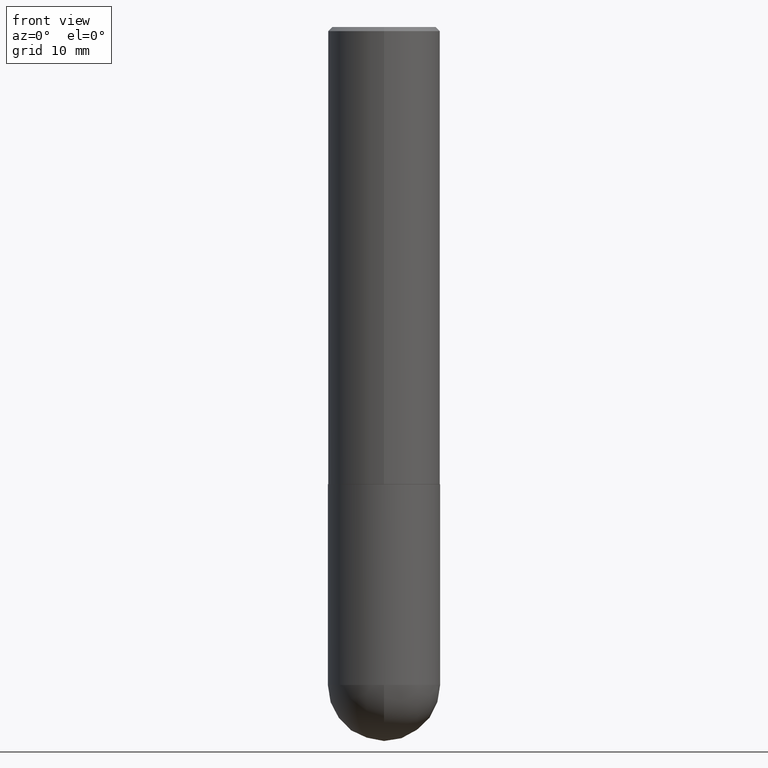
[diagram: clean part render]
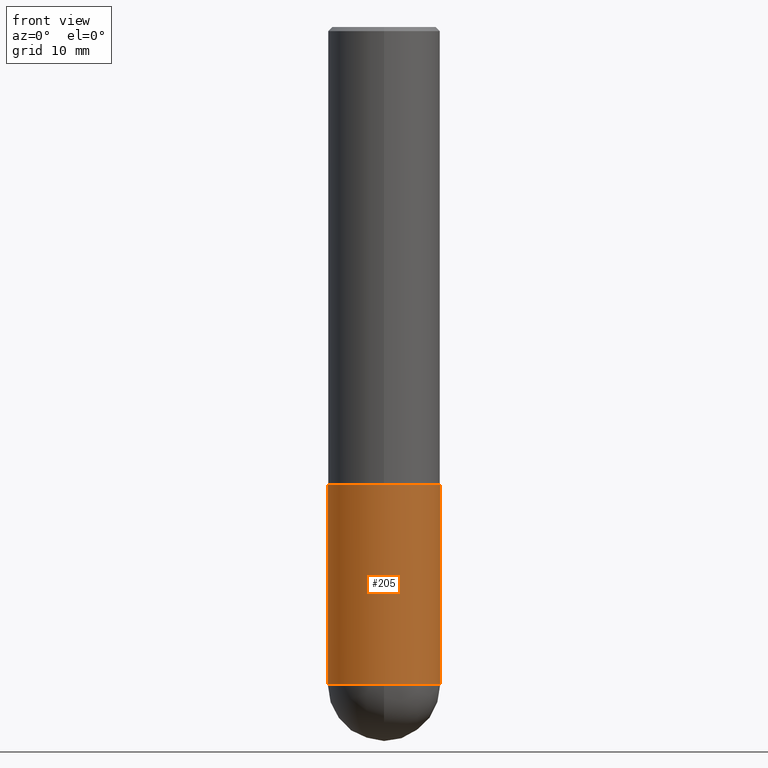
[diagram: same view with one face highlighted and labeled with its STEP entity id]
A machine part, front view. The second image highlights one B-rep face of the part: STEP entity #205.
In plain terms, the highlighted cylindrical surface (partial cylindrical patch) has radius 7.0002 mm, axis along (-0, 0, 1).
Its self-contained STEP definition (entity closure, byte-faithful):
#13 = EDGE_CURVE ( 'NONE', #154, #372, #407, .T. ) ;
#55 = CARTESIAN_POINT ( 'NONE',  ( 7.894706947007475996E-29, -1.127154920618732565E-14, -3.228299999999999503 ) ) ;
#56 = ORIENTED_EDGE ( 'NONE', *, *, #395, .T. ) ;
#60 = VERTEX_POINT ( 'NONE', #309 ) ;
#76 = FACE_OUTER_BOUND ( 'NONE', #129, .T. ) ;
#85 = DIRECTION ( 'NONE',  ( -2.445468806185136597E-29, 3.491481338843145583E-15, 1.000000000000000000 ) ) ;
#87 = EDGE_CURVE ( 'NONE', #231, #372, #376, .T. ) ;
#98 = DIRECTION ( 'NONE',  ( -2.445468806185136877E-29, 3.491481338843145188E-15, 1.000000000000000000 ) ) ;
#101 = CARTESIAN_POINT ( 'NONE',  ( -0.2756000000000000116, -7.595135459587776616E-15, -2.244099999999999540 ) ) ;
#107 = CARTESIAN_POINT ( 'NONE',  ( -0.2756000000000000671, 1.958255779754836589E-15, -1.355658510874252287E-29 ) ) ;
#115 = DIRECTION ( 'NONE',  ( 1.000000000000000000, -6.982962677686267499E-15, 4.876176775795935793E-29 ) ) ;
#117 = CARTESIAN_POINT ( 'NONE',  ( 0.2756000000000000116, -9.759737786468235716E-15, -2.244099999999999540 ) ) ;
#118 = CARTESIAN_POINT ( 'NONE',  ( 5.487876547960063631E-29, -7.835233272497900762E-15, -2.244099999999999540 ) ) ;
#123 = ORIENTED_EDGE ( 'NONE', *, *, #331, .T. ) ;
#129 = EDGE_LOOP ( 'NONE', ( #272, #56, #123, #140, #337 ) ) ;
#135 = CIRCLE ( 'NONE', #295, 0.2756000000000000671 ) ;
#138 = EDGE_CURVE ( 'NONE', #172, #154, #230, .T. ) ;
#139 = CYLINDRICAL_SURFACE ( 'NONE', #321, 0.2756000000000000671 ) ;
#140 = ORIENTED_EDGE ( 'NONE', *, *, #87, .T. ) ;
#154 = VERTEX_POINT ( 'NONE', #101 ) ;
#166 = CARTESIAN_POINT ( 'NONE',  ( -0.2756000000000000671, -7.595135459587778194E-15, -3.228299999999999503 ) ) ;
#172 = VERTEX_POINT ( 'NONE', #166 ) ;
#175 = VECTOR ( 'NONE', #201, 39.37007874015748143 ) ;
#184 = DIRECTION ( 'NONE',  ( 1.000000000000000000, -6.982962677686265922E-15, 0.000000000000000000 ) ) ;
#201 = DIRECTION ( 'NONE',  ( -2.445468806185136877E-29, 3.491481338843145188E-15, 1.000000000000000000 ) ) ;
#205 = ADVANCED_FACE ( 'NONE', ( #76 ), #139, .T. ) ;
#211 = CARTESIAN_POINT ( 'NONE',  ( 7.894706947007475996E-29, -1.127154920618732565E-14, -3.228299999999999503 ) ) ;
#230 = LINE ( 'NONE', #107, #175 ) ;
#231 = VERTEX_POINT ( 'NONE', #359 ) ;
#234 = CARTESIAN_POINT ( 'NONE',  ( 0.000000000000000000, 0.000000000000000000, 0.000000000000000000 ) ) ;
#242 = DIRECTION ( 'NONE',  ( -2.445468806185136597E-29, 3.491481338843145583E-15, 1.000000000000000000 ) ) ;
#245 = AXIS2_PLACEMENT_3D ( 'NONE', #211, #338, #367 ) ;
#272 = ORIENTED_EDGE ( 'NONE', *, *, #138, .F. ) ;
#295 = AXIS2_PLACEMENT_3D ( 'NONE', #55, #402, #310 ) ;
#299 = VECTOR ( 'NONE', #98, 39.37007874015748143 ) ;
#309 = CARTESIAN_POINT ( 'NONE',  ( -1.958255779754759675E-15, -0.2756000000000117245, -3.228299999999998615 ) ) ;
#310 = DIRECTION ( 'NONE',  ( 1.000000000000000000, -6.982962677686264344E-15, 0.000000000000000000 ) ) ;
#320 = CARTESIAN_POINT ( 'NONE',  ( 0.2756000000000000671, -1.924504513970335743E-15, 1.343874319409360268E-29 ) ) ;
#321 = AXIS2_PLACEMENT_3D ( 'NONE', #234, #242, #115 ) ;
#331 = EDGE_CURVE ( 'NONE', #60, #231, #400, .T. ) ;
#337 = ORIENTED_EDGE ( 'NONE', *, *, #13, .F. ) ;
#338 = DIRECTION ( 'NONE',  ( -2.445468806185136597E-29, 3.491481338843145583E-15, 1.000000000000000000 ) ) ;
#342 = AXIS2_PLACEMENT_3D ( 'NONE', #118, #85, #184 ) ;
#359 = CARTESIAN_POINT ( 'NONE',  ( 0.2756000000000000671, -1.147789575331294974E-14, -3.228299999999999503 ) ) ;
#367 = DIRECTION ( 'NONE',  ( 1.000000000000000000, -6.982962677686264344E-15, 0.000000000000000000 ) ) ;
#372 = VERTEX_POINT ( 'NONE', #117 ) ;
#376 = LINE ( 'NONE', #320, #299 ) ;
#395 = EDGE_CURVE ( 'NONE', #172, #60, #135, .T. ) ;
#400 = CIRCLE ( 'NONE', #245, 0.2756000000000000671 ) ;
#402 = DIRECTION ( 'NONE',  ( -2.445468806185136597E-29, 3.491481338843145583E-15, 1.000000000000000000 ) ) ;
#407 = CIRCLE ( 'NONE', #342, 0.2756000000000000116 ) ;